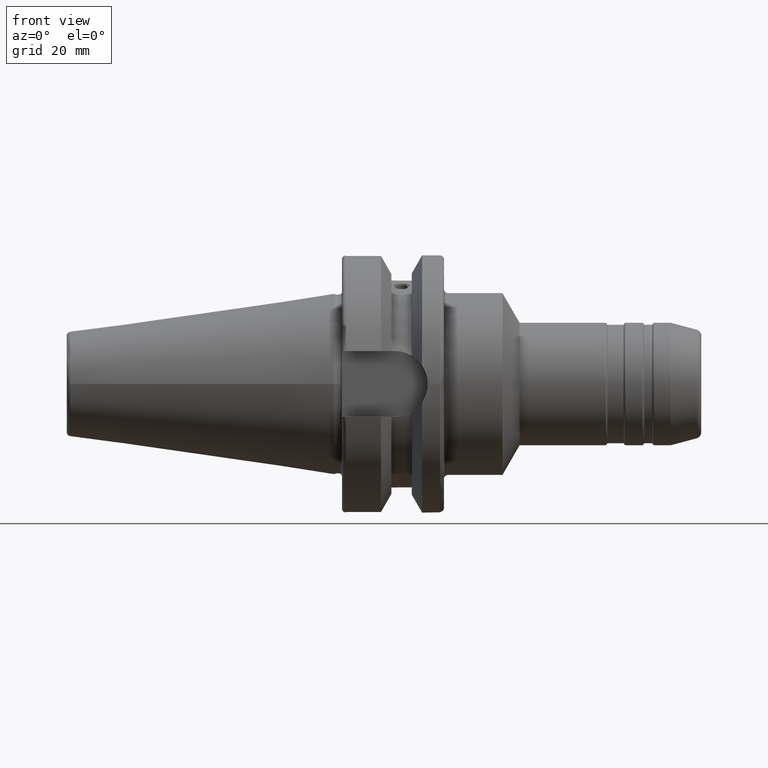
[diagram: clean part render]
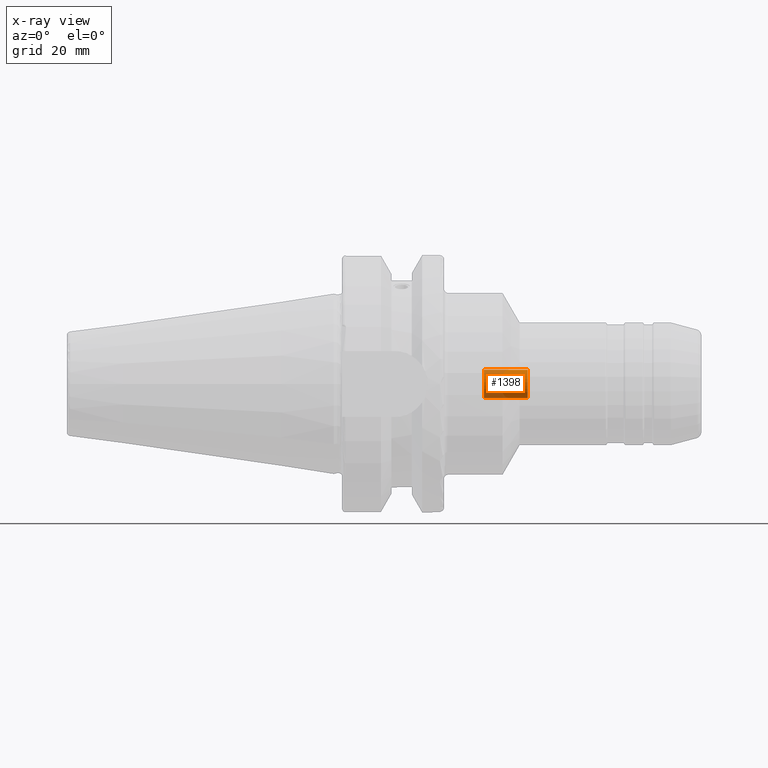
[diagram: x-ray — body ghosted, one internal face saturated and labeled with its STEP entity id]
A machine part, front view, then the same camera in x-ray: the body is ghosted and one INTERNAL B-rep face — a face not visible from any outside direction — is saturated and labeled: STEP entity #1398.
In plain terms, the highlighted cylindrical surface (bore or boss wall) has radius 3.4585 mm, axis along (1, 0, 0).
Its self-contained STEP definition (entity closure, byte-faithful):
#134=FACE_OUTER_BOUND('',#224,.T.);
#224=EDGE_LOOP('',(#928,#929,#930,#931,#932));
#330=LINE('',#2209,#403);
#403=VECTOR('',#1723,3.4585);
#476=CIRCLE('',#1512,3.4585);
#477=CIRCLE('',#1513,3.4585);
#478=CIRCLE('',#1514,3.4585);
#574=VERTEX_POINT('',#2206);
#575=VERTEX_POINT('',#2208);
#576=VERTEX_POINT('',#2210);
#710=EDGE_CURVE('',#574,#574,#476,.T.);
#711=EDGE_CURVE('',#574,#575,#330,.T.);
#712=EDGE_CURVE('',#576,#575,#477,.T.);
#713=EDGE_CURVE('',#575,#576,#478,.T.);
#928=ORIENTED_EDGE('',*,*,#710,.F.);
#929=ORIENTED_EDGE('',*,*,#711,.T.);
#930=ORIENTED_EDGE('',*,*,#712,.F.);
#931=ORIENTED_EDGE('',*,*,#713,.F.);
#932=ORIENTED_EDGE('',*,*,#711,.F.);
#1364=CYLINDRICAL_SURFACE('',#1511,3.4585);
#1398=ADVANCED_FACE('',(#134),#1364,.F.);
#1511=AXIS2_PLACEMENT_3D('',#2205,#1719,#1720);
#1512=AXIS2_PLACEMENT_3D('',#2207,#1721,#1722);
#1513=AXIS2_PLACEMENT_3D('',#2211,#1724,#1725);
#1514=AXIS2_PLACEMENT_3D('',#2212,#1726,#1727);
#1719=DIRECTION('center_axis',(1.,0.,0.));
#1720=DIRECTION('ref_axis',(0.,0.,-1.));
#1721=DIRECTION('center_axis',(-1.,0.,0.));
#1722=DIRECTION('ref_axis',(0.,0.,-1.));
#1723=DIRECTION('',(-1.,0.,0.));
#1724=DIRECTION('center_axis',(1.,0.,0.));
#1725=DIRECTION('ref_axis',(0.,0.,-1.));
#1726=DIRECTION('center_axis',(1.,0.,0.));
#1727=DIRECTION('ref_axis',(0.,0.,-1.));
#2205=CARTESIAN_POINT('Origin',(-131.631308602899,0.,0.));
#2206=CARTESIAN_POINT('',(47.5,-4.23544095485112E-16,3.4585));
#2207=CARTESIAN_POINT('Origin',(47.5,0.,0.));
#2208=CARTESIAN_POINT('',(36.7257963347172,-4.23544095485112E-16,3.4585));
#2209=CARTESIAN_POINT('',(-131.631308602899,-4.23544095485112E-16,3.4585));
#2210=CARTESIAN_POINT('',(36.7257963347172,-4.23544095485112E-16,-3.4585));
#2211=CARTESIAN_POINT('Origin',(36.7257963347172,0.,0.));
#2212=CARTESIAN_POINT('Origin',(36.7257963347172,0.,0.));